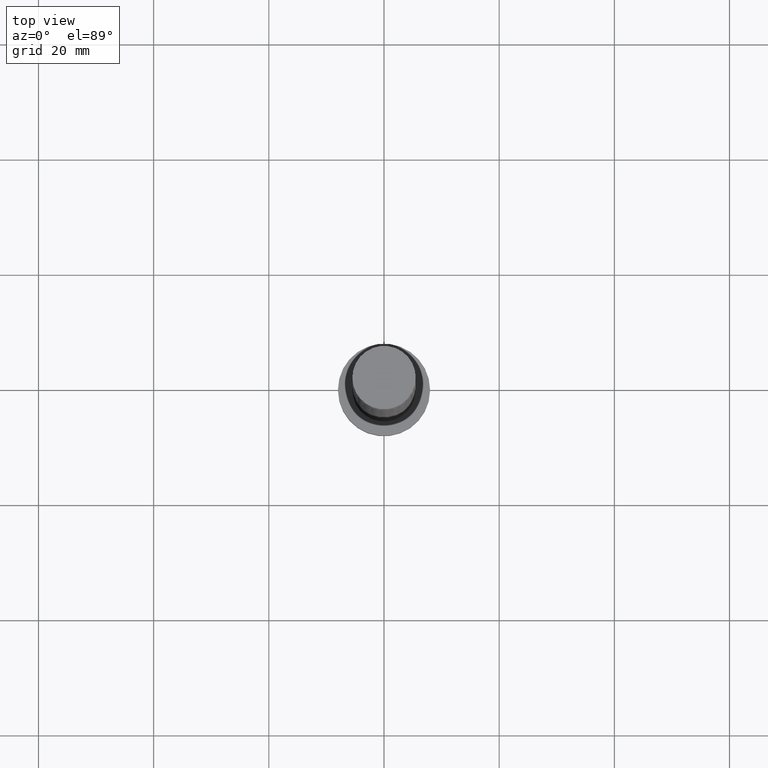
[diagram: clean part render]
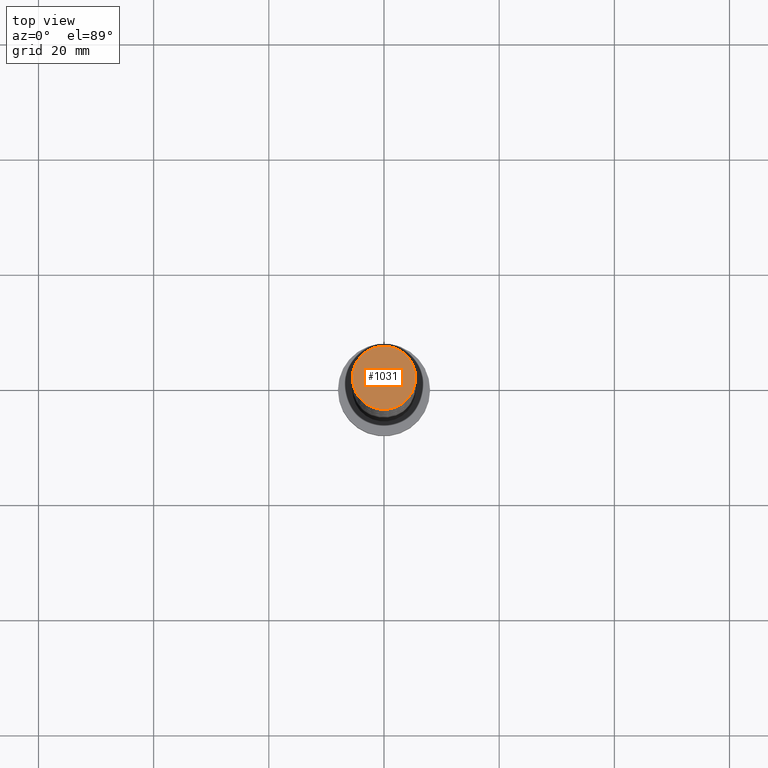
[diagram: same view with one face highlighted and labeled with its STEP entity id]
A machine part, top view. The second image highlights one B-rep face of the part: STEP entity #1031.
In plain terms, the highlighted planar face has unit normal (0, 0, 1).
Its self-contained STEP definition (entity closure, byte-faithful):
#22 = DIRECTION ( 'NONE',  ( 0.000000000000000000, 0.000000000000000000, 1.000000000000000000 ) ) ;
#53 = CARTESIAN_POINT ( 'NONE',  ( 0.000000000000000000, 0.000000000000000000, 125.0000000000000000 ) ) ;
#154 = CARTESIAN_POINT ( 'NONE',  ( 0.000000000000000000, 0.000000000000000000, 125.0000000000000000 ) ) ;
#361 = CARTESIAN_POINT ( 'NONE',  ( 0.000000000000000000, 0.000000000000000000, 125.0000000000000000 ) ) ;
#523 = VERTEX_POINT ( 'NONE', #1232 ) ;
#525 = DIRECTION ( 'NONE',  ( 0.000000000000000000, 0.000000000000000000, 1.000000000000000000 ) ) ;
#585 = ORIENTED_EDGE ( 'NONE', *, *, #656, .T. ) ;
#656 = EDGE_CURVE ( 'NONE', #1082, #523, #1096, .T. ) ;
#755 = AXIS2_PLACEMENT_3D ( 'NONE', #53, #525, #1004 ) ;
#911 = CARTESIAN_POINT ( 'NONE',  ( -5.500000000000000000, 0.000000000000000000, 125.0000000000000000 ) ) ;
#916 = EDGE_CURVE ( 'NONE', #523, #1082, #1318, .T. ) ;
#945 = PLANE ( 'NONE',  #1092 ) ;
#1004 = DIRECTION ( 'NONE',  ( 1.000000000000000000, 0.000000000000000000, 0.000000000000000000 ) ) ;
#1031 = ADVANCED_FACE ( 'NONE', ( #1334 ), #945, .T. ) ;
#1082 = VERTEX_POINT ( 'NONE', #911 ) ;
#1092 = AXIS2_PLACEMENT_3D ( 'NONE', #361, #1325, #1446 ) ;
#1096 = CIRCLE ( 'NONE', #1168, 5.500000000000000000 ) ;
#1168 = AXIS2_PLACEMENT_3D ( 'NONE', #154, #22, #1225 ) ;
#1181 = ORIENTED_EDGE ( 'NONE', *, *, #916, .T. ) ;
#1225 = DIRECTION ( 'NONE',  ( 1.000000000000000000, 0.000000000000000000, 0.000000000000000000 ) ) ;
#1232 = CARTESIAN_POINT ( 'NONE',  ( 5.500000000000000000, 6.735557395310442023E-16, 125.0000000000000000 ) ) ;
#1318 = CIRCLE ( 'NONE', #755, 5.500000000000000000 ) ;
#1325 = DIRECTION ( 'NONE',  ( 0.000000000000000000, 0.000000000000000000, 1.000000000000000000 ) ) ;
#1334 = FACE_OUTER_BOUND ( 'NONE', #1347, .T. ) ;
#1347 = EDGE_LOOP ( 'NONE', ( #585, #1181 ) ) ;
#1446 = DIRECTION ( 'NONE',  ( 1.000000000000000000, 0.000000000000000000, -0.000000000000000000 ) ) ;